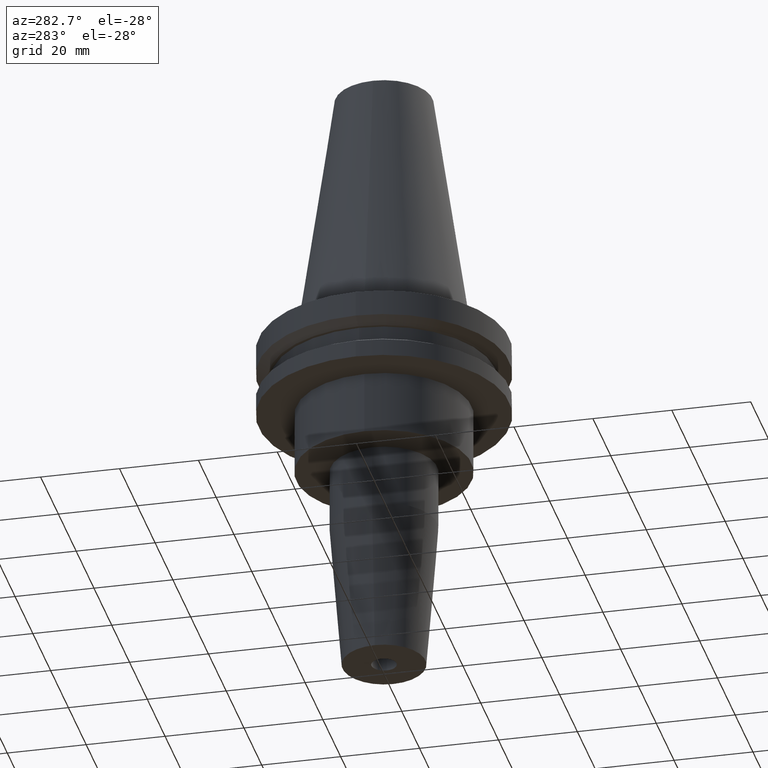
[diagram: clean part render]
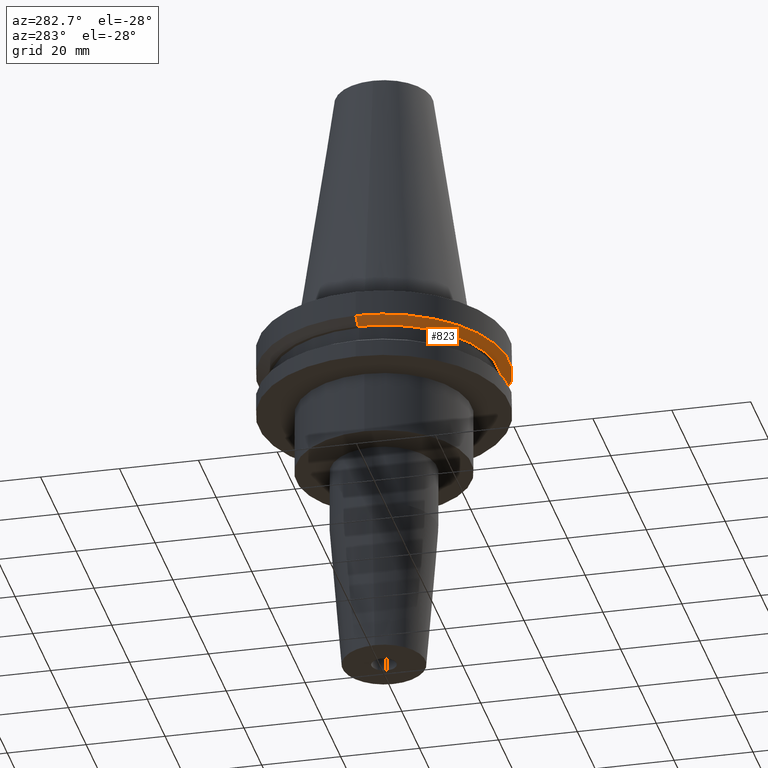
[diagram: same view with one face highlighted and labeled with its STEP entity id]
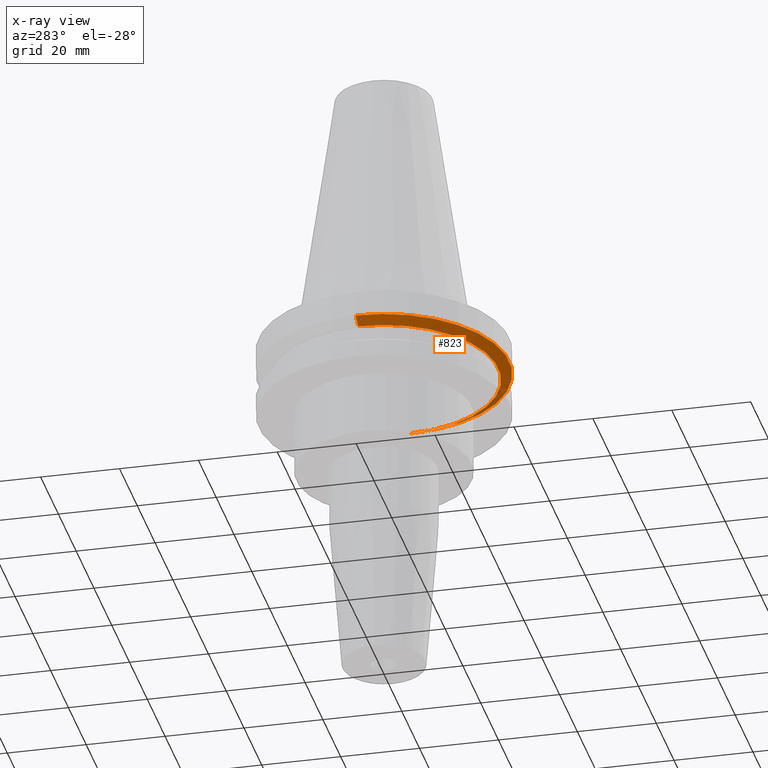
[diagram: x-ray of the same camera — body ghosted, the highlighted face saturated]
A machine part, auxiliary view. The second image highlights one B-rep face of the part: STEP entity #823.
The next image is the same camera in x-ray: the body ghosted, the highlighted face saturated — about 9% of this face is hidden behind the body in this view.
In plain terms, the highlighted conical surface has half-angle 60 deg.
Its self-contained STEP definition (entity closure, byte-faithful):
#6 = CIRCLE ( 'NONE', #649, 31.75000000000000000 ) ;
#60 = DIRECTION ( 'NONE',  ( 0.8660254037844389297, 0.000000000000000000, 0.4999999999999995004 ) ) ;
#64 = VERTEX_POINT ( 'NONE', #792 ) ;
#71 = EDGE_LOOP ( 'NONE', ( #659, #341, #583, #682 ) ) ;
#84 = CARTESIAN_POINT ( 'NONE',  ( 31.75000000000000000, 0.000000000000000000, -7.605276606597335842 ) ) ;
#97 = DIRECTION ( 'NONE',  ( 1.000000000000000000, 0.000000000000000000, 0.000000000000000000 ) ) ;
#132 = FACE_OUTER_BOUND ( 'NONE', #71, .T. ) ;
#221 = EDGE_CURVE ( 'NONE', #64, #825, #478, .T. ) ;
#250 = AXIS2_PLACEMENT_3D ( 'NONE', #273, #674, #477 ) ;
#269 = VERTEX_POINT ( 'NONE', #84 ) ;
#273 = CARTESIAN_POINT ( 'NONE',  ( 0.000000000000000000, 0.000000000000000000, -9.205000000000005400 ) ) ;
#277 = AXIS2_PLACEMENT_3D ( 'NONE', #403, #611, #97 ) ;
#284 = CARTESIAN_POINT ( 'NONE',  ( 28.97919780457007732, 0.000000000000000000, -9.205000000000005400 ) ) ;
#336 = VERTEX_POINT ( 'NONE', #284 ) ;
#341 = ORIENTED_EDGE ( 'NONE', *, *, #762, .T. ) ;
#358 = DIRECTION ( 'NONE',  ( -0.000000000000000000, -0.000000000000000000, 1.000000000000000000 ) ) ;
#359 = VECTOR ( 'NONE', #665, 1000.000000000000000 ) ;
#383 = LINE ( 'NONE', #508, #402 ) ;
#402 = VECTOR ( 'NONE', #60, 1000.000000000000000 ) ;
#403 = CARTESIAN_POINT ( 'NONE',  ( 0.000000000000000000, 0.000000000000000000, -9.205000000000005400 ) ) ;
#422 = CARTESIAN_POINT ( 'NONE',  ( 0.000000000000000000, 0.000000000000000000, -7.605276606597335842 ) ) ;
#477 = DIRECTION ( 'NONE',  ( 1.000000000000000000, 0.000000000000000000, 0.000000000000000000 ) ) ;
#478 = LINE ( 'NONE', #799, #359 ) ;
#508 = CARTESIAN_POINT ( 'NONE',  ( 28.97919780457007732, 0.000000000000000000, -9.205000000000005400 ) ) ;
#509 = EDGE_CURVE ( 'NONE', #825, #269, #6, .T. ) ;
#538 = EDGE_CURVE ( 'NONE', #336, #269, #383, .T. ) ;
#564 = CIRCLE ( 'NONE', #250, 28.97919780457007732 ) ;
#583 = ORIENTED_EDGE ( 'NONE', *, *, #538, .T. ) ;
#611 = DIRECTION ( 'NONE',  ( -0.000000000000000000, -0.000000000000000000, 1.000000000000000000 ) ) ;
#617 = CARTESIAN_POINT ( 'NONE',  ( -31.75000000000000000, 3.888253587292846476E-15, -7.605276606597335842 ) ) ;
#649 = AXIS2_PLACEMENT_3D ( 'NONE', #422, #358, #684 ) ;
#659 = ORIENTED_EDGE ( 'NONE', *, *, #221, .F. ) ;
#665 = DIRECTION ( 'NONE',  ( -0.8660254037844389297, 1.060575238724907285E-16, 0.4999999999999995004 ) ) ;
#674 = DIRECTION ( 'NONE',  ( -0.000000000000000000, -0.000000000000000000, 1.000000000000000000 ) ) ;
#682 = ORIENTED_EDGE ( 'NONE', *, *, #509, .F. ) ;
#684 = DIRECTION ( 'NONE',  ( 1.000000000000000000, 0.000000000000000000, 0.000000000000000000 ) ) ;
#730 = CONICAL_SURFACE ( 'NONE', #277, 28.97919780457007732, 1.047197551196598297 ) ;
#762 = EDGE_CURVE ( 'NONE', #64, #336, #564, .T. ) ;
#792 = CARTESIAN_POINT ( 'NONE',  ( -28.97919780457007732, 3.718590885307660666E-15, -9.205000000000005400 ) ) ;
#799 = CARTESIAN_POINT ( 'NONE',  ( -28.97919780457007732, 3.548928183322474856E-15, -9.205000000000005400 ) ) ;
#823 = ADVANCED_FACE ( 'NONE', ( #132 ), #730, .T. ) ;
#825 = VERTEX_POINT ( 'NONE', #617 ) ;